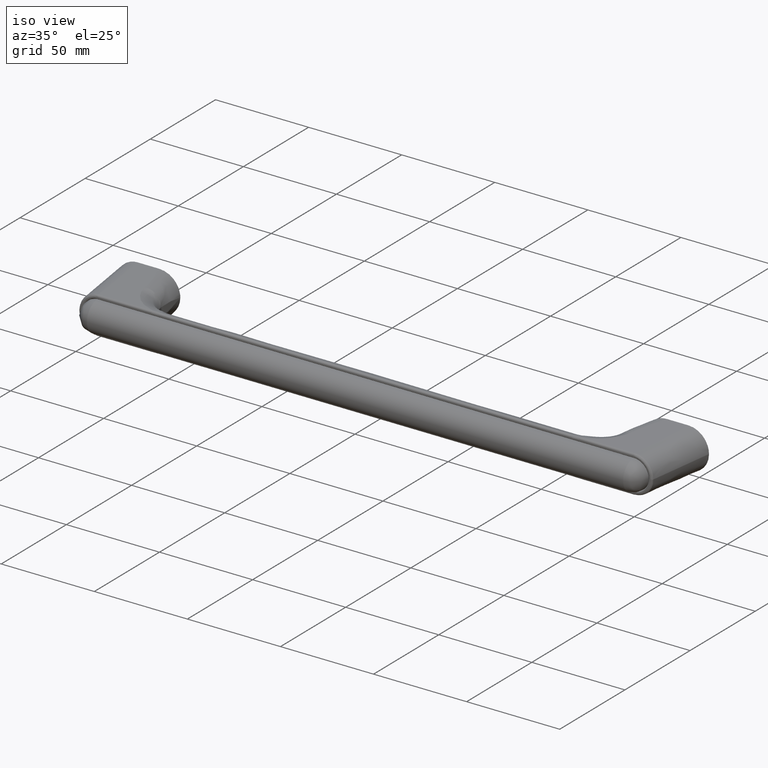
[diagram: clean part render]
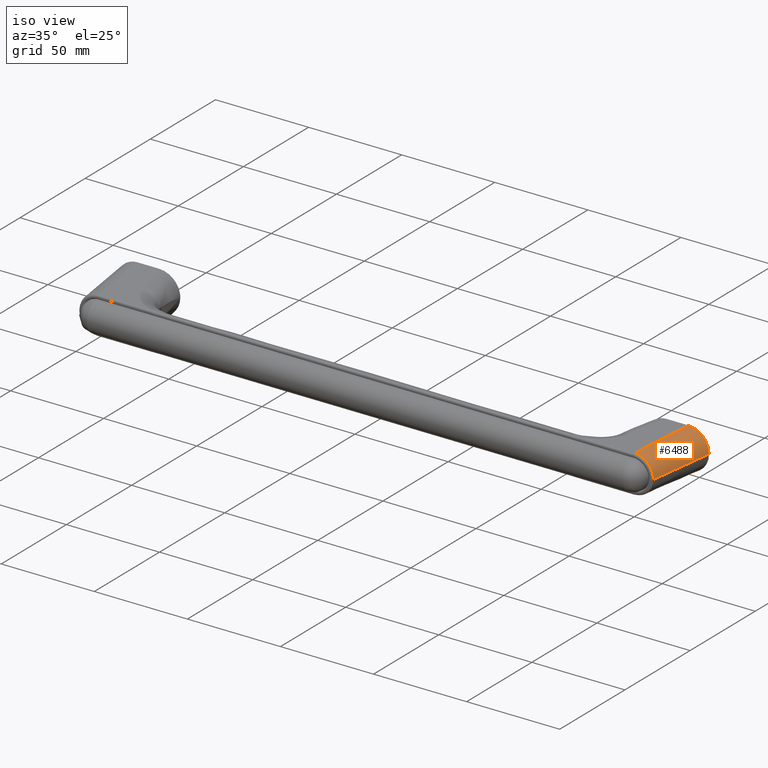
[diagram: same view with one face highlighted and labeled with its STEP entity id]
A machine part, iso view. The second image highlights one B-rep face of the part: STEP entity #6488.
In plain terms, the highlighted face is a freeform B-spline surface patch.
Its self-contained STEP definition (entity closure, byte-faithful):
#1790=CARTESIAN_POINT('',(144.051613881013000,10.026647000498500,-8.972613018194050));
#1791=VERTEX_POINT('',#1790);
#2026=CARTESIAN_POINT('',(154.118395025761000,0.005863998665295,-8.864281188054550));
#2027=VERTEX_POINT('',#2026);
#2041=CARTESIAN_POINT('',(144.051613881013000,10.026647000498521,-8.972613018194060));
#2042=CARTESIAN_POINT('',(144.072200794325910,10.026640851110670,-8.972388565521777));
#2043=CARTESIAN_POINT('',(144.093044754335690,10.026570953208079,-8.972161325654330));
#2044=CARTESIAN_POINT('',(144.134454293435110,10.026304152394280,-8.971709901551378));
#2045=CARTESIAN_POINT('',(144.196546896589690,10.025713324142860,-8.971033037853829));
#2046=CARTESIAN_POINT('',(144.341277991986800,10.023002910384371,-8.969455592653908));
#2047=CARTESIAN_POINT('',(144.630135712103310,10.012273360343510,-8.966308288550192));
#2048=CARTESIAN_POINT('',(144.876698223082000,9.994032274752863,-8.963623520045541));
#2049=CARTESIAN_POINT('',(145.368458167211490,9.945561402809647,-8.958271092088921));
#2050=CARTESIAN_POINT('',(145.694481339720710,9.897291654368672,-8.954725580212189));
#2051=CARTESIAN_POINT('',(146.180763047044110,9.800708560954556,-8.949441698108185));
#2052=CARTESIAN_POINT('',(146.342760414005200,9.764377931099263,-8.947682203754676));
#2053=CARTESIAN_POINT('',(146.663397379709610,9.684151913873908,-8.944201158842683));
#2054=CARTESIAN_POINT('',(146.822142595716090,9.640257614913837,-8.942478456671024));
#2055=CARTESIAN_POINT('',(147.293743061880690,9.497434226225943,-8.937362803606925));
#2056=CARTESIAN_POINT('',(147.910204980491300,9.277347415338488,-8.930681565207399));
#2057=CARTESIAN_POINT('',(148.502340089587110,8.998792013975942,-8.924275017590469));
#2058=CARTESIAN_POINT('',(148.937187134983390,8.767633133413865,-8.919574336033024));
#2059=CARTESIAN_POINT('',(149.080591046046410,8.686866573687697,-8.918024844049066));
#2060=CARTESIAN_POINT('',(149.364252200025590,8.517770556911891,-8.914961251243065));
#2061=CARTESIAN_POINT('',(149.504792695077500,8.429232710591640,-8.913444096999484));
#2062=CARTESIAN_POINT('',(149.917307284138390,8.154937432086529,-8.908993018322727));
#2063=CARTESIAN_POINT('',(150.181407325700290,7.959877751886864,-8.906146145605828));
#2064=CARTESIAN_POINT('',(150.688356544441890,7.546001616762006,-8.900686757039468));
#2065=CARTESIAN_POINT('',(150.931204492463110,7.327183787730181,-8.898074255203396));
#2066=CARTESIAN_POINT('',(151.395594443266110,6.865729783443147,-8.893083840363158));
#2067=CARTESIAN_POINT('',(151.617138204633390,6.623095574141500,-8.890705908383087));
#2068=CARTESIAN_POINT('',(151.880327936686800,6.304442625763496,-8.887884556394536));
#2069=CARTESIAN_POINT('',(151.932347790737110,6.239851048907152,-8.887327101667266));
#2070=CARTESIAN_POINT('',(152.034589990576310,6.109627001375790,-8.886231835590518));
#2071=CARTESIAN_POINT('',(152.185227885351910,5.912782929328797,-8.884618711888962));
#2072=CARTESIAN_POINT('',(152.327782359866490,5.711466199627926,-8.883093878458020));
#2073=CARTESIAN_POINT('',(152.602282303245490,5.302962644860618,-8.880160034566712));
#2074=CARTESIAN_POINT('',(152.940040915136390,4.742664967440348,-8.876556560423026));
#2075=CARTESIAN_POINT('',(153.221861426198590,4.151416042736170,-8.873563320540708));
#2076=CARTESIAN_POINT('',(153.411843281447690,3.696147577746468,-8.871551546074084));
#2077=CARTESIAN_POINT('',(153.471600277582210,3.542415937560115,-8.870919883819871));
#2078=CARTESIAN_POINT('',(153.555768267654800,3.308793239440332,-8.870031996605906));
#2079=CARTESIAN_POINT('',(153.582911366386010,3.230406246135595,-8.869745987364546));
#2080=CARTESIAN_POINT('',(153.635068971309610,3.073502601918349,-8.869197062402627));
#2081=CARTESIAN_POINT('',(153.660124034127390,2.994876409075533,-8.868933718530045));
#2082=CARTESIAN_POINT('',(153.780332724036210,2.600882460820649,-8.867672024630247));
#2083=CARTESIAN_POINT('',(153.860323953040510,2.282932136211235,-8.866838341014049));
#2084=CARTESIAN_POINT('',(153.988669887699390,1.641642925751196,-8.865514549986727));
#2085=CARTESIAN_POINT('',(154.037023386629500,1.318303834362157,-8.865024455874153));
#2086=CARTESIAN_POINT('',(154.085667263242900,0.829226697758121,-8.864548776062907));
#2087=CARTESIAN_POINT('',(154.097893762476590,0.665521699052951,-8.864433536950340));
#2088=CARTESIAN_POINT('',(154.110165704265510,0.418930688210070,-8.864326600854895));
#2089=CARTESIAN_POINT('',(154.114784015581510,0.295376684032397,-8.864289621189821));
#2090=CARTESIAN_POINT('',(154.117489653069900,0.150773461348810,-8.864275623667954));
#2091=CARTESIAN_POINT('',(154.118071056096510,0.088702175931544,-8.864275907008649));
#2092=CARTESIAN_POINT('',(154.118329790671710,0.047299369351383,-8.864277496223890));
#2093=CARTESIAN_POINT('',(154.118394725699800,0.026452136310027,-8.864278997607627));
#2094=CARTESIAN_POINT('',(154.118395025761000,0.005863998665292,-8.864281188054589));
#2095=B_SPLINE_CURVE_WITH_KNOTS('',3,(#2041,#2042,#2043,#2044,#2045,#2046,#2047,#2048,#2049,#2050,#2051,#2052,#2053,#2054,#2055,#2056,#2057,#2058,#2059,#2060,#2061,#2062,#2063,#2064,#2065,#2066,#2067,#2068,#2069,#2070,#2071,#2072,#2073,#2074,#2075,#2076,#2077,#2078,#2079,#2080,#2081,#2082,#2083,#2084,#2085,#2086,#2087,#2088,#2089,#2090,#2091,#2092,#2093,#2094),.UNSPECIFIED.,.F.,.U.,(4,2,1,1,1,2,2,2,2,1,2,2,2,2,2,2,2,1,2,1,2,2,2,2,2,2,2,1,1,2,4),(0.0,0.003906249999998,0.007812499999997,0.015624999999994,0.031249999999993,0.062499999999991,0.124999999999988,0.156249999999986,0.187499999999984,0.249999999999985,0.312499999999987,0.343749999999987,0.374999999999988,0.437499999999989,0.499999999999991,0.562499999999993,0.578124999999993,0.593749999999993,0.624999999999994,0.687499999999995,0.749999999999997,0.781249999999997,0.796874999999996,0.812499999999996,0.874999999999998,0.937499999999999,0.968749999999999,0.984375000000000,0.992187500000000,0.996093750000000,1.0),.UNSPECIFIED.);
#2096=EDGE_CURVE('',#1791,#2027,#2095,.T.);
#6402=CARTESIAN_POINT('',(159.034735011427700,0.044801025436952,-44.753565601210717));
#6403=CARTESIAN_POINT('',(158.994381083705010,10.998876216741273,-44.458981908168951));
#6404=CARTESIAN_POINT('',(148.137587289252110,11.039591732473410,-45.945098336967277));
#6405=CARTESIAN_POINT('',(157.341268115665290,0.031388900553510,-32.391256394874667));
#6406=CARTESIAN_POINT('',(157.302111615549050,10.660422323182511,-32.105413923975007));
#6407=CARTESIAN_POINT('',(146.767472945601210,10.699929681857560,-33.547432617087097));
#6408=CARTESIAN_POINT('',(155.647801219902790,0.017976775670068,-20.028947188538581));
#6409=CARTESIAN_POINT('',(155.609842147393350,10.321968429623752,-19.751845939781084));
#6410=CARTESIAN_POINT('',(145.397358601950490,10.360267631241751,-21.149766897206849));
#6411=CARTESIAN_POINT('',(153.954334324139810,0.004564650786627,-7.666637982202463));
#6412=CARTESIAN_POINT('',(153.917572679237400,9.983514536064991,-7.398277955587150));
#6413=CARTESIAN_POINT('',(144.027244258299590,10.020605580625899,-8.752101177326638));
#6421=(BOUNDED_SURFACE()B_SPLINE_SURFACE(2,3,((#6402,#6405,#6408,#6411),(#6403,#6406,#6409,#6412),(#6404,#6407,#6410,#6413)),.UNSPECIFIED.,.F.,.F.,.U.)B_SPLINE_SURFACE_WITH_KNOTS((3,3),(4,4),(0.0,18.175723106750759),(0.0,37.433304560602373),.UNSPECIFIED.)GEOMETRIC_REPRESENTATION_ITEM()RATIONAL_B_SPLINE_SURFACE(((1.0,1.0,1.0,1.0),(0.708419695037308,0.708419695037308,0.708419695037308,0.708419695037308),(1.0,1.0,1.0,1.0)))REPRESENTATION_ITEM('')SURFACE());
#6422=CARTESIAN_POINT('',(147.977883841506210,11.0,-44.500000000000000));
#6423=VERTEX_POINT('',#6422);
#6424=CARTESIAN_POINT('',(144.051613881012710,10.026647000498510,-8.972613018194068));
#6425=CARTESIAN_POINT('',(145.360370534510710,10.351098000332360,-20.815075345462699));
#6426=CARTESIAN_POINT('',(146.669127188008390,10.675549000166180,-32.657537672731372));
#6427=CARTESIAN_POINT('',(147.977883841506410,11.000000000000030,-44.499999999999979));
#6428=B_SPLINE_CURVE_WITH_KNOTS('',3,(#6424,#6425,#6426,#6427),.UNSPECIFIED.,.F.,.U.,(4,4),(0.407825264908886,0.594879132900888),.UNSPECIFIED.);
#6429=EDGE_CURVE('',#1791,#6423,#6428,.T.);
#6430=ORIENTED_EDGE('',*,*,#6429,.F.);
#6431=ORIENTED_EDGE('',*,*,#2096,.T.);
#6432=CARTESIAN_POINT('',(159.0,0.044525926872985,-44.500000000000000));
#6433=VERTEX_POINT('',#6432);
#6434=CARTESIAN_POINT('',(159.000000000000110,0.044525926873017,-44.499999999999829));
#6435=CARTESIAN_POINT('',(157.372798341920400,0.031638617470443,-32.621427062684752));
#6436=CARTESIAN_POINT('',(155.745596683840800,0.018751308067869,-20.742854125369622));
#6437=CARTESIAN_POINT('',(154.118395025760690,0.005863998665295,-8.864281188054468));
#6438=B_SPLINE_CURVE_WITH_KNOTS('',3,(#6434,#6435,#6436,#6437),.UNSPECIFIED.,.F.,.U.,(4,4),(0.401555590334444,0.589716442070143),.UNSPECIFIED.);
#6439=EDGE_CURVE('',#6433,#2027,#6438,.T.);
#6440=ORIENTED_EDGE('',*,*,#6439,.F.);
#6441=CARTESIAN_POINT('',(147.977883841506210,11.0,-44.500000000000000));
#6442=CARTESIAN_POINT('',(148.340936215874900,11.0,-44.500000000000007));
#6443=CARTESIAN_POINT('',(148.700488459567510,10.982208202466159,-44.499999999999993));
#6444=CARTESIAN_POINT('',(149.412886572745610,10.912534893870941,-44.499999999999993));
#6445=CARTESIAN_POINT('',(150.118576437817610,10.808762346378179,-44.500000000000057));
#6446=CARTESIAN_POINT('',(150.811032611104590,10.637720549068160,-44.499999999999979));
#6447=CARTESIAN_POINT('',(151.496774218954190,10.432547400721720,-44.499999999999993));
#6448=CARTESIAN_POINT('',(151.836288704671800,10.312900053817801,-44.499999999999993));
#6449=CARTESIAN_POINT('',(152.508303839640600,10.037952760181730,-44.500000000000000));
#6450=CARTESIAN_POINT('',(152.834800646493590,9.885103630361645,-44.500000000000021));
#6451=CARTESIAN_POINT('',(153.469221626872210,9.549771327473005,-44.500000000000007));
#6452=CARTESIAN_POINT('',(153.777176901471900,9.367271841890398,-44.500000000000050));
#6453=CARTESIAN_POINT('',(154.374673535286410,8.972760888312919,-44.500000000000050));
#6454=CARTESIAN_POINT('',(154.664215708662790,8.760750725174914,-44.500000000000007));
#6455=CARTESIAN_POINT('',(155.084390369473310,8.420075547270818,-44.500000000000021));
#6456=CARTESIAN_POINT('',(155.222223249561300,8.302612033135747,-44.500000000000028));
#6457=CARTESIAN_POINT('',(155.492487190634710,8.060455729684490,-44.500000000000043));
#6458=CARTESIAN_POINT('',(155.624065444230410,7.936539480497324,-44.500000000000007));
#6459=CARTESIAN_POINT('',(156.008352331722700,7.556446769934114,-44.500000000000007));
#6460=CARTESIAN_POINT('',(156.492923988361100,7.027445960734264,-44.499999999999957));
#6461=CARTESIAN_POINT('',(156.922877149250610,6.454825297532133,-44.500000000000057));
#6462=CARTESIAN_POINT('',(157.224641677391300,6.008827929260953,-44.500000000000057));
#6463=CARTESIAN_POINT('',(157.321773682504100,5.857401945337454,-44.500000000000007));
#6464=CARTESIAN_POINT('',(157.462202538732100,5.626054878155866,-44.500000000000007));
#6465=CARTESIAN_POINT('',(157.508133550737710,5.548237509250756,-44.499999999999993));
#6466=CARTESIAN_POINT('',(157.598219024353910,5.391183968747954,-44.499999999999993));
#6467=CARTESIAN_POINT('',(157.642434001761100,5.311833802504155,-44.499999999999993));
#6468=CARTESIAN_POINT('',(157.858111273641700,4.913172748816327,-44.500000000000000));
#6469=CARTESIAN_POINT('',(158.013437179434190,4.588259947734818,-44.499999999999993));
#6470=CARTESIAN_POINT('',(158.290737775312100,3.926842030174601,-44.499999999999993));
#6471=CARTESIAN_POINT('',(158.412709644335710,3.590335933142675,-44.500000000000021));
#6472=CARTESIAN_POINT('',(158.623384775637110,2.905760137151802,-44.500000000000021));
#6473=CARTESIAN_POINT('',(158.712089963925710,2.557691107641327,-44.500000000000021));
#6474=CARTESIAN_POINT('',(158.801624124267310,2.115184853616758,-44.500000000000007));
#6475=CARTESIAN_POINT('',(158.818461081833590,2.026311732629604,-44.500000000000007));
#6476=CARTESIAN_POINT('',(158.849970940526500,1.847813301439520,-44.500000000000021));
#6477=CARTESIAN_POINT('',(158.864646343371900,1.758153921633753,-44.500000000000021));
#6478=CARTESIAN_POINT('',(158.905227855236490,1.489167587925764,-44.500000000000007));
#6479=CARTESIAN_POINT('',(158.927760021283800,1.309469887614185,-44.500000000000043));
#6480=CARTESIAN_POINT('',(158.981871784627090,0.769263108105793,-44.500000000000043));
#6481=CARTESIAN_POINT('',(159.0,0.407643104886070,-44.500000000000000));
#6482=CARTESIAN_POINT('',(159.0,0.044525926873017,-44.500000000000000));
#6483=B_SPLINE_CURVE_WITH_KNOTS('',3,(#6441,#6442,#6443,#6444,#6445,#6446,#6447,#6448,#6449,#6450,#6451,#6452,#6453,#6454,#6455,#6456,#6457,#6458,#6459,#6460,#6461,#6462,#6463,#6464,#6465,#6466,#6467,#6468,#6469,#6470,#6471,#6472,#6473,#6474,#6475,#6476,#6477,#6478,#6479,#6480,#6481,#6482),.UNSPECIFIED.,.F.,.U.,(4,2,1,2,2,2,2,2,2,2,1,2,2,2,2,2,2,2,2,2,2,4),(0.0,0.062500000000001,0.125000000000003,0.187500000000005,0.250000000000006,0.312500000000007,0.375000000000009,0.437500000000010,0.468750000000009,0.500000000000008,0.562500000000006,0.625000000000004,0.656250000000003,0.671875000000002,0.687500000000002,0.750000000000001,0.812500000000001,0.875000000000001,0.890625000000001,0.906250000000001,0.937500000000001,1.0),.UNSPECIFIED.);
#6484=EDGE_CURVE('',#6423,#6433,#6483,.T.);
#6485=ORIENTED_EDGE('',*,*,#6484,.F.);
#6486=EDGE_LOOP('',(#6430,#6431,#6440,#6485));
#6487=FACE_OUTER_BOUND('',#6486,.T.);
#6488=ADVANCED_FACE('',(#6487),#6421,.T.);